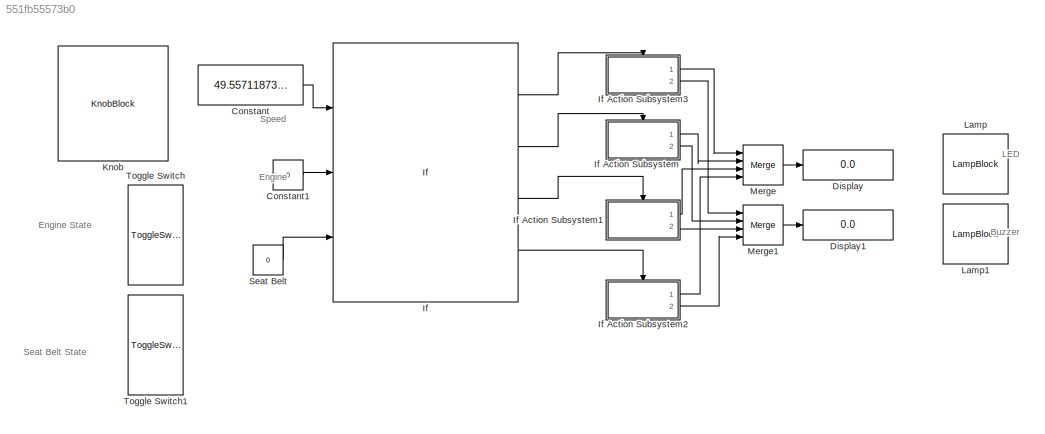
MODEL slx_551fb55573b0
KIND model
CONFIG AbsTol = auto
CONFIG EnableMultiTasking = off
CONFIG FixedStep = auto
CONFIG MaxStep = auto
CONFIG MinStep = auto
CONFIG RelTol = 1e-3
CONFIG SampleTimeConstraint = Unconstrained
CONFIG SolverName = VariableStepAuto
CONFIG StartTime = 0.0
CONFIG StopTime = inf
BLOCK [Constant] Constant
  Value = 49.55711873372396
BLOCK [Constant] Constant1
  Value = 0
BLOCK [Display] Display
  Decimation = 1
  Ports = [1]
BLOCK [Display] Display1
  Decimation = 1
  Ports = [1]
BLOCK [If] If
  ElseIfExpressions = u1>30 & u3==0, u1==0 & u2==1 & u3==0, u1>0 & u3==0
  IfExpression = u3==1
  NumInputs = 3
  Ports = [3, 4]
  ShowElse = off
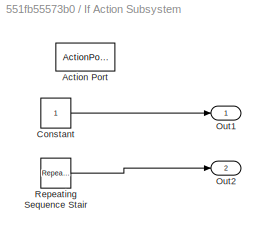
BLOCK [SubSystem] If Action Subsystem
  Ports = [0, 2, 0, 0, 0, 0, 0, 1]
  RequestExecContextInheritance = off
  TreatAsAtomicUnit = on
BLOCK [ActionPort] If Action Subsystem/Action Port
  ActionPortLabel = elseif(u1>30 & u3==0)
BLOCK [Constant] If Action Subsystem/Constant
BLOCK [Outport] If Action Subsystem/Out1
BLOCK [Outport] If Action Subsystem/Out2
  Port = 2
BLOCK [Reference] If Action Subsystem/Repeating Sequence Stair  REF=simulink/Sources/Repeating
Sequence
Stair
  Ports = [0, 1]
  SourceBlock = simulink/Sources/Repeating\nSequence\nStair
  SourceProductBaseCode = SL
  SourceType = Repeating Sequence Stair
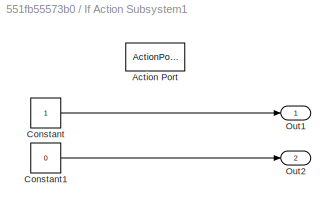
BLOCK [SubSystem] If Action Subsystem1
  Ports = [0, 2, 0, 0, 0, 0, 0, 1]
  RequestExecContextInheritance = off
  TreatAsAtomicUnit = on
BLOCK [ActionPort] If Action Subsystem1/Action Port
  ActionPortLabel = elseif( u1==0 & u2==1 & u3==0)
BLOCK [Constant] If Action Subsystem1/Constant
BLOCK [Constant] If Action Subsystem1/Constant1
  Value = 0
BLOCK [Outport] If Action Subsystem1/Out1
BLOCK [Outport] If Action Subsystem1/Out2
  Port = 2
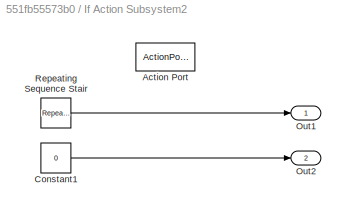
BLOCK [SubSystem] If Action Subsystem2
  Ports = [0, 2, 0, 0, 0, 0, 0, 1]
  RequestExecContextInheritance = off
  TreatAsAtomicUnit = on
BLOCK [ActionPort] If Action Subsystem2/Action Port
  ActionPortLabel = elseif( u1>0 & u3==0)
BLOCK [Constant] If Action Subsystem2/Constant1
  Value = 0
BLOCK [Outport] If Action Subsystem2/Out1
BLOCK [Outport] If Action Subsystem2/Out2
  Port = 2
BLOCK [Reference] If Action Subsystem2/Repeating Sequence Stair  REF=simulink/Sources/Repeating
Sequence
Stair
  Ports = [0, 1]
  SourceBlock = simulink/Sources/Repeating\nSequence\nStair
  SourceProductBaseCode = SL
  SourceType = Repeating Sequence Stair
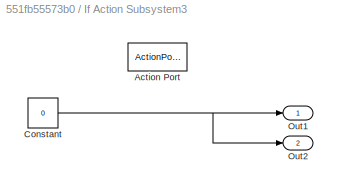
BLOCK [SubSystem] If Action Subsystem3
  Ports = [0, 2, 0, 0, 0, 0, 0, 1]
  RequestExecContextInheritance = off
  TreatAsAtomicUnit = on
BLOCK [ActionPort] If Action Subsystem3/Action Port
  ActionPortLabel = if(u3==1)
BLOCK [Constant] If Action Subsystem3/Constant
  Value = 0
BLOCK [Outport] If Action Subsystem3/Out1
BLOCK [Outport] If Action Subsystem3/Out2
  Port = 2
BLOCK [KnobBlock] Knob
BLOCK [LampBlock] Lamp
BLOCK [LampBlock] Lamp1
BLOCK [Merge] Merge
  Inputs = 4
  Ports = [4, 1]
BLOCK [Merge] Merge1
  Inputs = 4
  Ports = [4, 1]
BLOCK [Constant] Seat Belt
  Value = 0
BLOCK [ToggleSwitchBlock] Toggle Switch
BLOCK [ToggleSwitchBlock] Toggle Switch1
ANNOTATION (root): Buzzer
ANNOTATION (root): Engine
ANNOTATION (root): Engine State
ANNOTATION (root): LED
ANNOTATION (root): Seat Belt State
ANNOTATION (root): Speed
LINE Constant1:1 -> If:2
LINE Constant:1 -> If:1
LINE If Action Subsystem/Constant:1 -> If Action Subsystem/Out1:1
LINE If Action Subsystem/Repeating Sequence Stair:1 -> If Action Subsystem/Out2:1
LINE If Action Subsystem1/Constant1:1 -> If Action Subsystem1/Out2:1
LINE If Action Subsystem1/Constant:1 -> If Action Subsystem1/Out1:1
LINE If Action Subsystem1:1 -> Merge:3
LINE If Action Subsystem1:2 -> Merge1:3
LINE If Action Subsystem2/Constant1:1 -> If Action Subsystem2/Out2:1
LINE If Action Subsystem2/Repeating Sequence Stair:1 -> If Action Subsystem2/Out1:1
LINE If Action Subsystem2:1 -> Merge:4
LINE If Action Subsystem2:2 -> Merge1:4
NET If Action Subsystem3/Constant:1 -> If Action Subsystem3/Out1:1, If Action Subsystem3/Out2:1
LINE If Action Subsystem3:1 -> Merge:1
LINE If Action Subsystem3:2 -> Merge1:1
LINE If Action Subsystem:1 -> Merge:2
LINE If Action Subsystem:2 -> Merge1:2
LINE If:1 -> If Action Subsystem3:ifaction
LINE If:2 -> If Action Subsystem:ifaction
LINE If:3 -> If Action Subsystem1:ifaction
LINE If:4 -> If Action Subsystem2:ifaction
LINE Merge1:1 -> Display1:1
LINE Merge:1 -> Display:1
LINE Seat Belt:1 -> If:3
note: NET lines group one-source signal fan-out (src -> all destinations, sorted); 1:1 wires keep LINE
